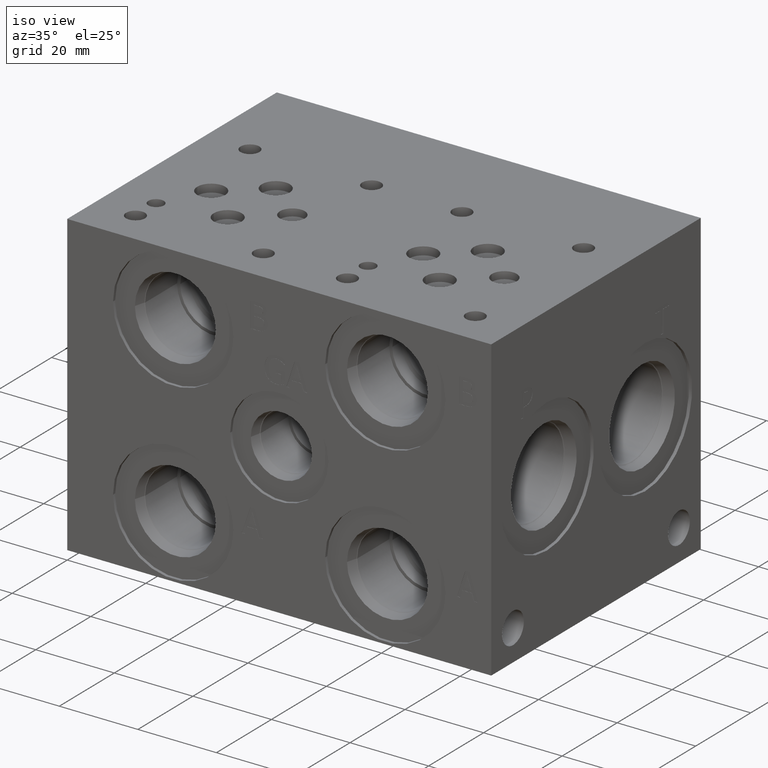
[diagram: clean part render]
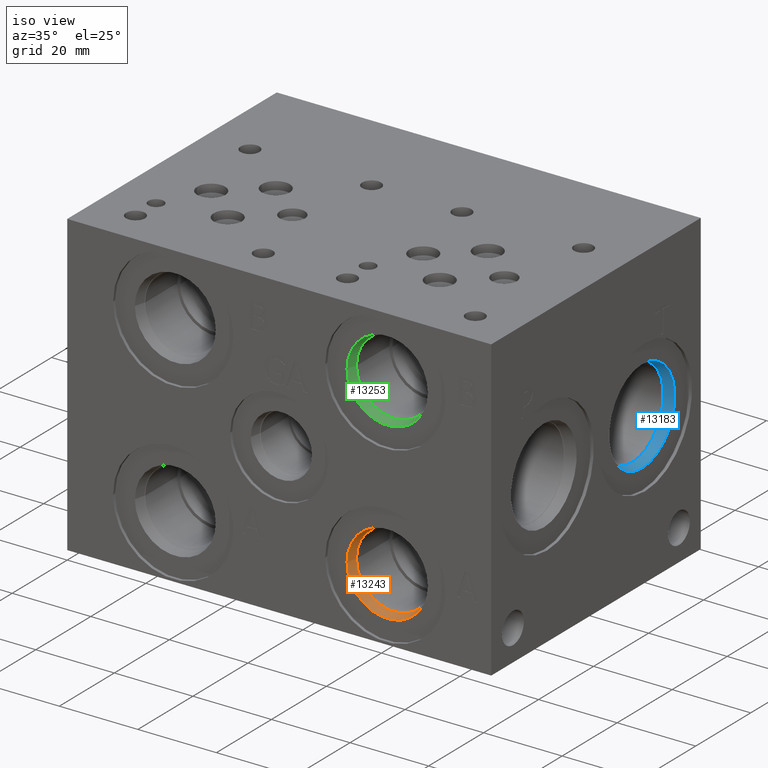
[diagram: same view with three faces highlighted in distinct colors, each labeled with its STEP entity id]
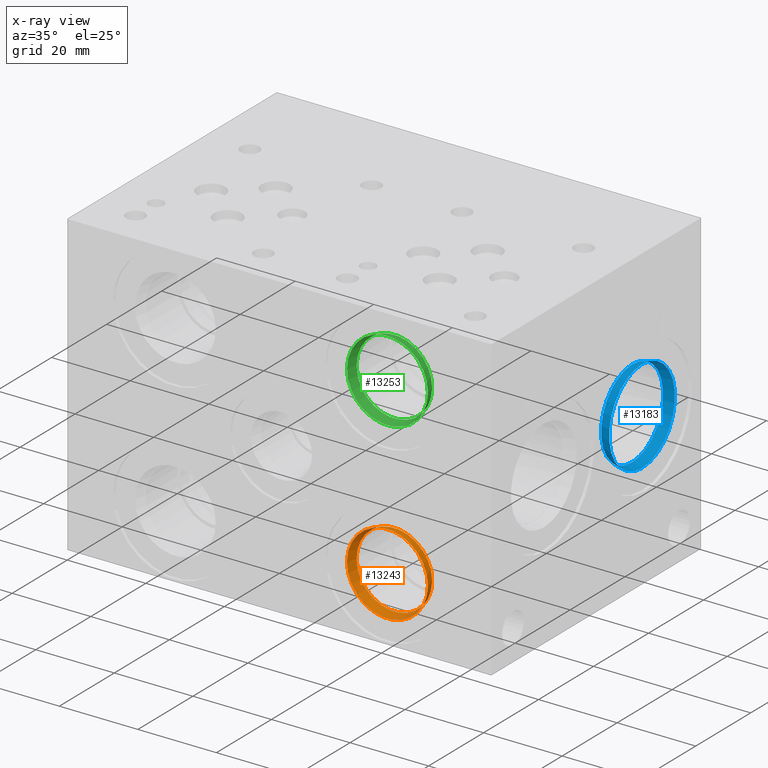
[diagram: x-ray of the same camera — body ghosted, the three highlighted faces saturated]
A machine part, iso view with three faces highlighted in distinct colors.
The next image is the same camera in x-ray (body ghosted, the three faces saturated) — at least one of them is partly hidden behind the body in this view.
Their STEP definitions:

[orange] entity #13243 — the highlighted conical surface has half-angle 15 deg.
#37=CONICAL_SURFACE('',#13913,9.96315000000001,0.261799387657291);
#304=CIRCLE('',#13911,10.2997);
#305=CIRCLE('',#13912,10.2997);
#306=CIRCLE('',#13914,9.6266);
#307=CIRCLE('',#13915,9.6266);
#1709=FACE_OUTER_BOUND('',#2474,.T.);
#2474=EDGE_LOOP('',(#11244,#11245,#11246,#11247,#11248,#11249));
#3706=LINE('',#22620,#4880);
#4880=VECTOR('',#16381,9.96315000000001);
#6045=VERTEX_POINT('',#22614);
#6046=VERTEX_POINT('',#22615);
#6047=VERTEX_POINT('',#22619);
#6048=VERTEX_POINT('',#22621);
#7835=EDGE_CURVE('',#6045,#6046,#304,.T.);
#7836=EDGE_CURVE('',#6046,#6045,#305,.T.);
#7837=EDGE_CURVE('',#6046,#6047,#3706,.T.);
#7838=EDGE_CURVE('',#6047,#6048,#306,.T.);
#7839=EDGE_CURVE('',#6048,#6047,#307,.T.);
#11244=ORIENTED_EDGE('',*,*,#7835,.F.);
#11245=ORIENTED_EDGE('',*,*,#7836,.F.);
#11246=ORIENTED_EDGE('',*,*,#7837,.T.);
#11247=ORIENTED_EDGE('',*,*,#7838,.T.);
#11248=ORIENTED_EDGE('',*,*,#7839,.T.);
#11249=ORIENTED_EDGE('',*,*,#7837,.F.);
#13243=ADVANCED_FACE('',(#1709),#37,.F.);
#13911=AXIS2_PLACEMENT_3D('',#22616,#16375,#16376);
#13912=AXIS2_PLACEMENT_3D('',#22617,#16377,#16378);
#13913=AXIS2_PLACEMENT_3D('',#22618,#16379,#16380);
#13914=AXIS2_PLACEMENT_3D('',#22622,#16382,#16383);
#13915=AXIS2_PLACEMENT_3D('',#22623,#16384,#16385);
#16375=DIRECTION('center_axis',(0.,1.,0.));
#16376=DIRECTION('ref_axis',(1.,0.,0.));
#16377=DIRECTION('center_axis',(0.,1.,0.));
#16378=DIRECTION('ref_axis',(1.,0.,0.));
#16379=DIRECTION('center_axis',(0.,-1.,0.));
#16380=DIRECTION('ref_axis',(1.,0.,0.));
#16381=DIRECTION('',(0.258819044965496,0.965925826325784,-3.16961914975369E-17));
#16382=DIRECTION('center_axis',(0.,1.,0.));
#16383=DIRECTION('ref_axis',(1.,0.,0.));
#16384=DIRECTION('center_axis',(0.,1.,0.));
#16385=DIRECTION('ref_axis',(1.,0.,0.));
#22614=CARTESIAN_POINT('',(91.2749,0.7874,15.875));
#22615=CARTESIAN_POINT('',(70.6755,0.7874,15.875));
#22616=CARTESIAN_POINT('Origin',(80.9752,0.7874,15.875));
#22617=CARTESIAN_POINT('Origin',(80.9752,0.7874,15.875));
#22618=CARTESIAN_POINT('Origin',(80.9752,2.0434217,15.875));
#22619=CARTESIAN_POINT('',(71.3486,3.2994434,15.875));
#22620=CARTESIAN_POINT('',(71.01205,2.0434217,15.875));
#22621=CARTESIAN_POINT('',(90.6018,3.2994434,15.875));
#22622=CARTESIAN_POINT('Origin',(80.9752,3.2994434,15.875));
#22623=CARTESIAN_POINT('Origin',(80.9752,3.2994434,15.875));

[blue] entity #13183 — the highlighted conical surface has half-angle 15 deg.
#17=CONICAL_SURFACE('',#13761,11.61415,0.261799387657295);
#212=CIRCLE('',#13759,11.9507);
#213=CIRCLE('',#13760,11.9507);
#214=CIRCLE('',#13762,11.2776);
#215=CIRCLE('',#13763,11.2776);
#1649=FACE_OUTER_BOUND('',#2402,.T.);
#2402=EDGE_LOOP('',(#10948,#10949,#10950,#10951,#10952,#10953));
#3658=LINE('',#22320,#4832);
#4832=VECTOR('',#16029,11.61415);
#5945=VERTEX_POINT('',#22314);
#5946=VERTEX_POINT('',#22315);
#5947=VERTEX_POINT('',#22319);
#5948=VERTEX_POINT('',#22321);
#7695=EDGE_CURVE('',#5945,#5946,#212,.T.);
#7696=EDGE_CURVE('',#5946,#5945,#213,.T.);
#7697=EDGE_CURVE('',#5946,#5947,#3658,.T.);
#7698=EDGE_CURVE('',#5947,#5948,#214,.T.);
#7699=EDGE_CURVE('',#5948,#5947,#215,.T.);
#10948=ORIENTED_EDGE('',*,*,#7695,.F.);
#10949=ORIENTED_EDGE('',*,*,#7696,.F.);
#10950=ORIENTED_EDGE('',*,*,#7697,.T.);
#10951=ORIENTED_EDGE('',*,*,#7698,.T.);
#10952=ORIENTED_EDGE('',*,*,#7699,.T.);
#10953=ORIENTED_EDGE('',*,*,#7697,.F.);
#13183=ADVANCED_FACE('',(#1649),#17,.F.);
#13759=AXIS2_PLACEMENT_3D('',#22316,#16023,#16024);
#13760=AXIS2_PLACEMENT_3D('',#22317,#16025,#16026);
#13761=AXIS2_PLACEMENT_3D('',#22318,#16027,#16028);
#13762=AXIS2_PLACEMENT_3D('',#22322,#16030,#16031);
#13763=AXIS2_PLACEMENT_3D('',#22323,#16032,#16033);
#16023=DIRECTION('center_axis',(-1.,0.,0.));
#16024=DIRECTION('ref_axis',(0.,0.,1.));
#16025=DIRECTION('center_axis',(-1.,0.,0.));
#16026=DIRECTION('ref_axis',(0.,0.,1.));
#16027=DIRECTION('center_axis',(1.,0.,0.));
#16028=DIRECTION('ref_axis',(0.,0.,-1.));
#16029=DIRECTION('',(-0.965925826325783,-3.16961914975374E-17,-0.2588190449655));
#16030=DIRECTION('center_axis',(-1.,0.,0.));
#16031=DIRECTION('ref_axis',(0.,0.,1.));
#16032=DIRECTION('center_axis',(-1.,0.,0.));
#16033=DIRECTION('ref_axis',(0.,0.,1.));
#22314=CARTESIAN_POINT('',(107.1626,55.9562,26.1493));
#22315=CARTESIAN_POINT('',(107.1626,55.9562,50.0507));
#22316=CARTESIAN_POINT('Origin',(107.1626,55.9562,38.1));
#22317=CARTESIAN_POINT('Origin',(107.1626,55.9562,38.1));
#22318=CARTESIAN_POINT('Origin',(105.9065783,55.9562,38.1));
#22319=CARTESIAN_POINT('',(104.6505566,55.9562,49.3776));
#22320=CARTESIAN_POINT('',(105.9065783,55.9562,49.71415));
#22321=CARTESIAN_POINT('',(104.6505566,55.9562,26.8224));
#22322=CARTESIAN_POINT('Origin',(104.6505566,55.9562,38.1));
#22323=CARTESIAN_POINT('Origin',(104.6505566,55.9562,38.1));

[green] entity #13253 — the highlighted conical surface has half-angle 15 deg.
#41=CONICAL_SURFACE('',#13941,9.96315000000001,0.261799387657291);
#322=CIRCLE('',#13939,10.2997);
#323=CIRCLE('',#13940,10.2997);
#324=CIRCLE('',#13942,9.6266);
#325=CIRCLE('',#13943,9.6266);
#1719=FACE_OUTER_BOUND('',#2486,.T.);
#2486=EDGE_LOOP('',(#11298,#11299,#11300,#11301,#11302,#11303));
#3714=LINE('',#22674,#4888);
#4888=VECTOR('',#16445,9.96315000000001);
#6063=VERTEX_POINT('',#22668);
#6064=VERTEX_POINT('',#22669);
#6065=VERTEX_POINT('',#22673);
#6066=VERTEX_POINT('',#22675);
#7861=EDGE_CURVE('',#6063,#6064,#322,.T.);
#7862=EDGE_CURVE('',#6064,#6063,#323,.T.);
#7863=EDGE_CURVE('',#6064,#6065,#3714,.T.);
#7864=EDGE_CURVE('',#6065,#6066,#324,.T.);
#7865=EDGE_CURVE('',#6066,#6065,#325,.T.);
#11298=ORIENTED_EDGE('',*,*,#7861,.F.);
#11299=ORIENTED_EDGE('',*,*,#7862,.F.);
#11300=ORIENTED_EDGE('',*,*,#7863,.T.);
#11301=ORIENTED_EDGE('',*,*,#7864,.T.);
#11302=ORIENTED_EDGE('',*,*,#7865,.T.);
#11303=ORIENTED_EDGE('',*,*,#7863,.F.);
#13253=ADVANCED_FACE('',(#1719),#41,.F.);
#13939=AXIS2_PLACEMENT_3D('',#22670,#16439,#16440);
#13940=AXIS2_PLACEMENT_3D('',#22671,#16441,#16442);
#13941=AXIS2_PLACEMENT_3D('',#22672,#16443,#16444);
#13942=AXIS2_PLACEMENT_3D('',#22676,#16446,#16447);
#13943=AXIS2_PLACEMENT_3D('',#22677,#16448,#16449);
#16439=DIRECTION('center_axis',(0.,1.,0.));
#16440=DIRECTION('ref_axis',(1.,0.,0.));
#16441=DIRECTION('center_axis',(0.,1.,0.));
#16442=DIRECTION('ref_axis',(1.,0.,0.));
#16443=DIRECTION('center_axis',(0.,-1.,0.));
#16444=DIRECTION('ref_axis',(1.,0.,0.));
#16445=DIRECTION('',(0.258819044965496,0.965925826325784,-3.16961914975369E-17));
#16446=DIRECTION('center_axis',(0.,1.,0.));
#16447=DIRECTION('ref_axis',(1.,0.,0.));
#16448=DIRECTION('center_axis',(0.,1.,0.));
#16449=DIRECTION('ref_axis',(1.,0.,0.));
#22668=CARTESIAN_POINT('',(91.2749,0.7874,60.325));
#22669=CARTESIAN_POINT('',(70.6755,0.7874,60.325));
#22670=CARTESIAN_POINT('Origin',(80.9752,0.7874,60.325));
#22671=CARTESIAN_POINT('Origin',(80.9752,0.7874,60.325));
#22672=CARTESIAN_POINT('Origin',(80.9752,2.0434217,60.325));
#22673=CARTESIAN_POINT('',(71.3486,3.2994434,60.325));
#22674=CARTESIAN_POINT('',(71.01205,2.0434217,60.325));
#22675=CARTESIAN_POINT('',(90.6018,3.2994434,60.325));
#22676=CARTESIAN_POINT('Origin',(80.9752,3.2994434,60.325));
#22677=CARTESIAN_POINT('Origin',(80.9752,3.2994434,60.325));